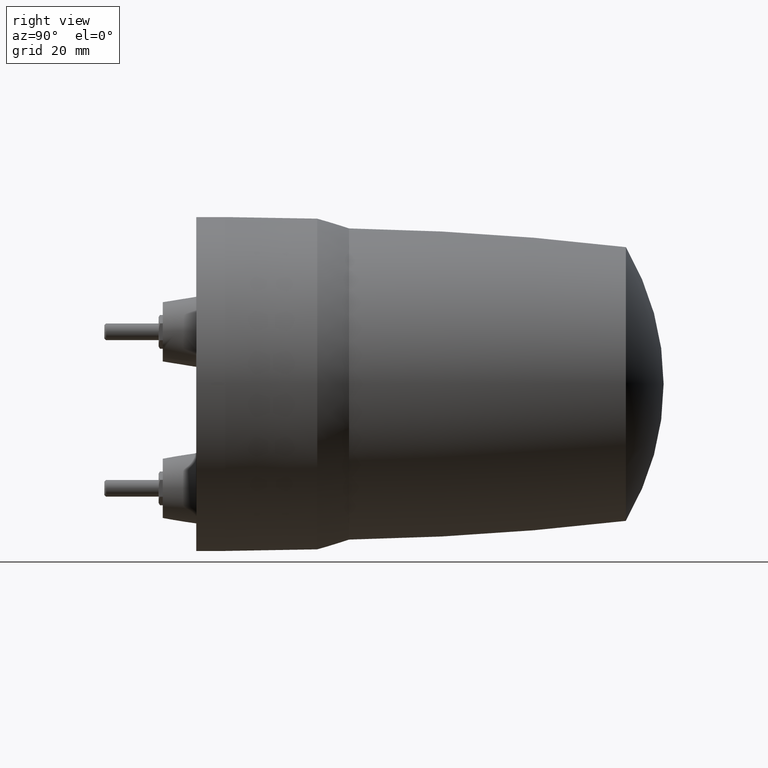
[diagram: clean part render]
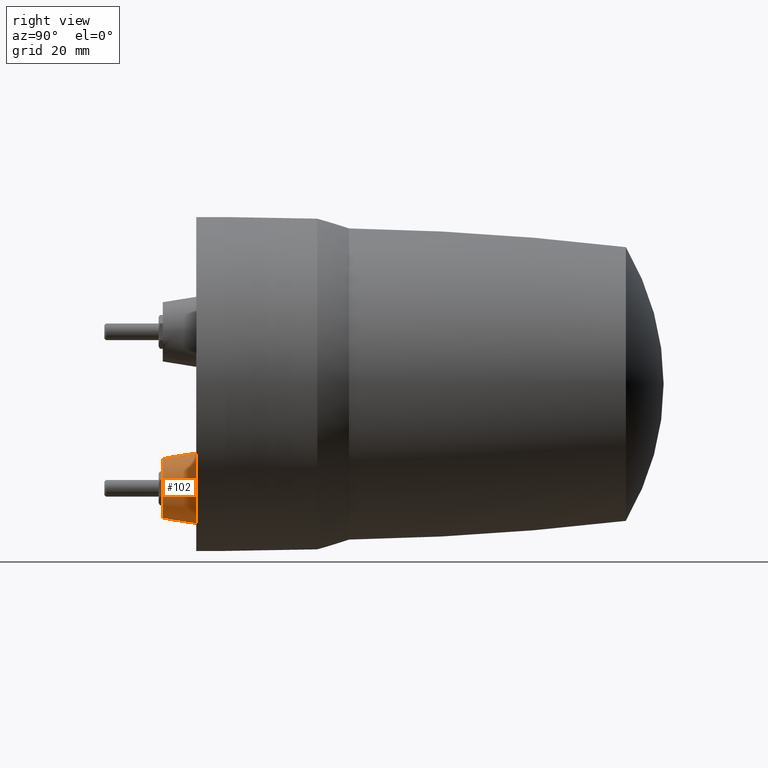
[diagram: same view with one face highlighted and labeled with its STEP entity id]
A machine part, right view. The second image highlights one B-rep face of the part: STEP entity #102.
In plain terms, the highlighted toroidal blend (fillet) surface has major radius 140.254 mm and minor (blend) radius 150 mm.
Its self-contained STEP definition (entity closure, byte-faithful):
#71 = VERTEX_POINT ( 'NONE', #1025 ) ;
#102 = ADVANCED_FACE ( 'NONE', ( #3642 ), #1758, .T. ) ;
#151 = CARTESIAN_POINT ( 'NONE',  ( 0.000000000000000000, 29.05062822935055067, -165.2538660930127890 ) ) ;
#374 = CARTESIAN_POINT ( 'NONE',  ( 0.000000000000000000, 9.000000003132900162, -25.00000000000000000 ) ) ;
#396 = DIRECTION ( 'NONE',  ( 0.000000000000000000, 1.000000000000000000, 0.000000000000000000 ) ) ;
#699 = AXIS2_PLACEMENT_3D ( 'NONE', #4151, #3031, #2375 ) ;
#853 = EDGE_CURVE ( 'NONE', #71, #2080, #4533, .T. ) ;
#887 = ORIENTED_EDGE ( 'NONE', *, *, #2672, .F. ) ;
#984 = ORIENTED_EDGE ( 'NONE', *, *, #4407, .T. ) ;
#1010 = CARTESIAN_POINT ( 'NONE',  ( -9.491012693646046358E-16, 0.9999999999463220490, -32.10000000028195899 ) ) ;
#1019 = EDGE_LOOP ( 'NONE', ( #887, #3690, #984, #2658 ) ) ;
#1025 = CARTESIAN_POINT ( 'NONE',  ( 0.000000000000000000, 0.9999999999463220490, -17.89999999971804101 ) ) ;
#1758 = TOROIDAL_SURFACE ( 'NONE', #2127, -140.2538660930127890, 149.9999986556830152 ) ;
#1781 = CIRCLE ( 'NONE', #3853, 149.9999986556829867 ) ;
#1875 = DIRECTION ( 'NONE',  ( 0.000000000000000000, -1.000000000000000000, 0.000000000000000000 ) ) ;
#1881 = CIRCLE ( 'NONE', #699, 149.9999986556830436 ) ;
#1975 = CARTESIAN_POINT ( 'NONE',  ( 0.000000000000000000, 0.9999999999463220490, -25.00000000000000000 ) ) ;
#2080 = VERTEX_POINT ( 'NONE', #1010 ) ;
#2127 = AXIS2_PLACEMENT_3D ( 'NONE', #4279, #1875, #2229 ) ;
#2131 = DIRECTION ( 'NONE',  ( 0.000000000000000000, 0.000000000000000000, -1.000000000000000000 ) ) ;
#2227 = VERTEX_POINT ( 'NONE', #2942 ) ;
#2229 = DIRECTION ( 'NONE',  ( 0.000000000000000000, 0.000000000000000000, 1.000000000000000000 ) ) ;
#2309 = DIRECTION ( 'NONE',  ( 1.000000000000000000, 0.000000000000000000, -0.000000000000000000 ) ) ;
#2375 = DIRECTION ( 'NONE',  ( 1.224646799147352714E-16, 0.000000000000000000, 1.000000000000000000 ) ) ;
#2658 = ORIENTED_EDGE ( 'NONE', *, *, #853, .T. ) ;
#2672 = EDGE_CURVE ( 'NONE', #2227, #2080, #1881, .T. ) ;
#2855 = CIRCLE ( 'NONE', #3896, 8.400000000132905598 ) ;
#2942 = CARTESIAN_POINT ( 'NONE',  ( -1.028703311300054336E-15, 9.000000003132901938, -33.40000000013291981 ) ) ;
#3031 = DIRECTION ( 'NONE',  ( -1.000000000000000000, 0.000000000000000000, 1.224646799147353207E-16 ) ) ;
#3582 = AXIS2_PLACEMENT_3D ( 'NONE', #1975, #4154, #3807 ) ;
#3642 = FACE_OUTER_BOUND ( 'NONE', #1019, .T. ) ;
#3690 = ORIENTED_EDGE ( 'NONE', *, *, #3720, .F. ) ;
#3720 = EDGE_CURVE ( 'NONE', #4168, #2227, #2855, .T. ) ;
#3807 = DIRECTION ( 'NONE',  ( 0.000000000000000000, 0.000000000000000000, -1.000000000000000000 ) ) ;
#3825 = CARTESIAN_POINT ( 'NONE',  ( 0.000000000000000000, 9.000000003132901938, -16.59999999986707664 ) ) ;
#3853 = AXIS2_PLACEMENT_3D ( 'NONE', #151, #2309, #4031 ) ;
#3896 = AXIS2_PLACEMENT_3D ( 'NONE', #374, #396, #2131 ) ;
#4031 = DIRECTION ( 'NONE',  ( 0.000000000000000000, 0.000000000000000000, -1.000000000000000000 ) ) ;
#4151 = CARTESIAN_POINT ( 'NONE',  ( 1.717614481788496195E-14, 29.05062822935055067, 115.2538660930128032 ) ) ;
#4154 = DIRECTION ( 'NONE',  ( 0.000000000000000000, 1.000000000000000000, 0.000000000000000000 ) ) ;
#4168 = VERTEX_POINT ( 'NONE', #3825 ) ;
#4279 = CARTESIAN_POINT ( 'NONE',  ( 0.000000000000000000, 29.05062822935055067, -25.00000000000000000 ) ) ;
#4407 = EDGE_CURVE ( 'NONE', #4168, #71, #1781, .T. ) ;
#4533 = CIRCLE ( 'NONE', #3582, 7.100000000281957213 ) ;